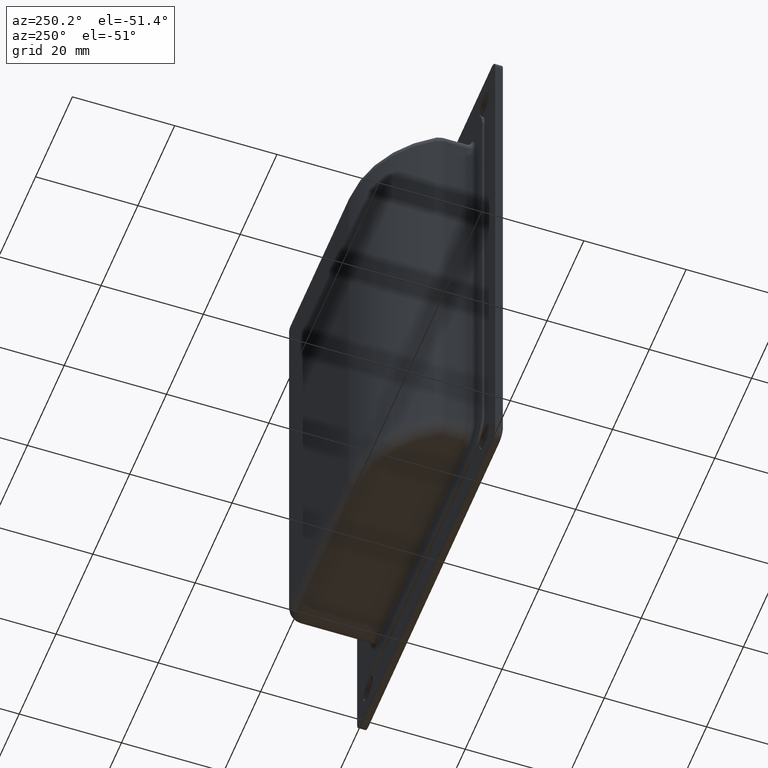
[diagram: clean part render]
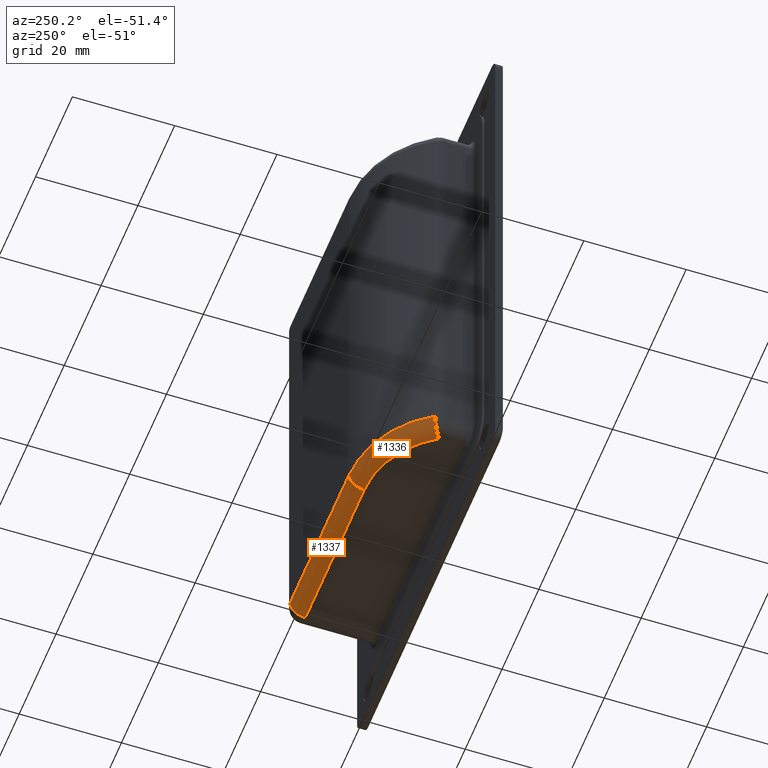
[diagram: same view with one multi-face feature highlighted, each face labeled with its STEP entity id]
A machine part, auxiliary view. The highlighted faces form ONE feature: a constant-radius fillet chain: 2 tangent blend faces with common blend radius 3 mm. The faces share edges in the B-rep.
Their STEP definitions:
[1] entity #1337 (Cylinder):
#124=LINE('',#2246,#220);
#125=LINE('',#2247,#221);
#220=VECTOR('',#1817,32.);
#221=VECTOR('',#1818,32.);
#283=CYLINDRICAL_SURFACE('',#1478,3.);
#341=FACE_OUTER_BOUND('',#427,.T.);
#427=EDGE_LOOP('',(#1092,#1093,#1094,#1095));
#533=CIRCLE('',#1476,3.);
#535=CIRCLE('',#1479,3.);
#643=VERTEX_POINT('',#2237);
#644=VERTEX_POINT('',#2239);
#645=VERTEX_POINT('',#2243);
#646=VERTEX_POINT('',#2244);
#804=EDGE_CURVE('',#643,#644,#533,.T.);
#806=EDGE_CURVE('',#645,#646,#535,.T.);
#807=EDGE_CURVE('',#646,#644,#124,.T.);
#808=EDGE_CURVE('',#643,#645,#125,.T.);
#1092=ORIENTED_EDGE('',*,*,#806,.T.);
#1093=ORIENTED_EDGE('',*,*,#807,.T.);
#1094=ORIENTED_EDGE('',*,*,#804,.F.);
#1095=ORIENTED_EDGE('',*,*,#808,.T.);
#1337=ADVANCED_FACE('',(#341),#283,.T.);
#1476=AXIS2_PLACEMENT_3D('',#2240,#1809,#1810);
#1478=AXIS2_PLACEMENT_3D('',#2242,#1813,#1814);
#1479=AXIS2_PLACEMENT_3D('',#2245,#1815,#1816);
#1809=DIRECTION('center_axis',(-1.,0.,0.));
#1810=DIRECTION('ref_axis',(0.,1.,0.));
#1813=DIRECTION('center_axis',(1.,2.77555756156289E-16,0.));
#1814=DIRECTION('ref_axis',(0.,0.707106781186546,-0.707106781186549));
#1815=DIRECTION('center_axis',(-1.,0.,0.));
#1816=DIRECTION('ref_axis',(0.,1.,0.));
#1817=DIRECTION('',(-1.,-2.77555756156289E-16,0.));
#1818=DIRECTION('',(1.,2.77555756156289E-16,0.));
#2237=CARTESIAN_POINT('',(19.,17.5,-40.5));
#2239=CARTESIAN_POINT('',(19.,14.5,-43.5));
#2240=CARTESIAN_POINT('Origin',(19.,14.5,-40.5));
#2242=CARTESIAN_POINT('Origin',(39.9852925297952,14.5,-40.5));
#2243=CARTESIAN_POINT('',(51.,17.5,-40.5));
#2244=CARTESIAN_POINT('',(51.,14.5,-43.5));
#2245=CARTESIAN_POINT('Origin',(51.,14.5,-40.5));
#2246=CARTESIAN_POINT('',(39.9852925297952,14.5,-43.5));
#2247=CARTESIAN_POINT('',(39.9852925297952,17.5,-40.5));
[2] entity #1336 (Torus):
#340=FACE_OUTER_BOUND('',#426,.T.);
#426=EDGE_LOOP('',(#1088,#1089,#1090,#1091));
#531=CIRCLE('',#1474,3.);
#532=CIRCLE('',#1475,21.9090909090909);
#533=CIRCLE('',#1476,3.);
#534=CIRCLE('',#1477,18.9090909090909);
#641=VERTEX_POINT('',#2231);
#642=VERTEX_POINT('',#2235);
#643=VERTEX_POINT('',#2237);
#644=VERTEX_POINT('',#2239);
#802=EDGE_CURVE('',#641,#642,#531,.T.);
#803=EDGE_CURVE('',#642,#643,#532,.T.);
#804=EDGE_CURVE('',#643,#644,#533,.T.);
#805=EDGE_CURVE('',#644,#641,#534,.T.);
#1088=ORIENTED_EDGE('',*,*,#802,.T.);
#1089=ORIENTED_EDGE('',*,*,#803,.T.);
#1090=ORIENTED_EDGE('',*,*,#804,.T.);
#1091=ORIENTED_EDGE('',*,*,#805,.T.);
#1287=TOROIDAL_SURFACE('',#1473,18.9090909090909,3.);
#1336=ADVANCED_FACE('',(#340),#1287,.T.);
#1473=AXIS2_PLACEMENT_3D('',#2234,#1803,#1804);
#1474=AXIS2_PLACEMENT_3D('',#2236,#1805,#1806);
#1475=AXIS2_PLACEMENT_3D('',#2238,#1807,#1808);
#1476=AXIS2_PLACEMENT_3D('',#2240,#1809,#1810);
#1477=AXIS2_PLACEMENT_3D('',#2241,#1811,#1812);
#1803=DIRECTION('center_axis',(0.,0.,-1.));
#1804=DIRECTION('ref_axis',(-1.,0.,0.));
#1805=DIRECTION('center_axis',(0.532938710021194,0.846153846153845,0.));
#1806=DIRECTION('ref_axis',(0.,0.,-1.));
#1807=DIRECTION('center_axis',(0.,0.,-1.));
#1808=DIRECTION('ref_axis',(-0.483250085348573,0.875482355624942,0.));
#1809=DIRECTION('center_axis',(-1.,0.,0.));
#1810=DIRECTION('ref_axis',(0.,1.,0.));
#1811=DIRECTION('center_axis',(0.,0.,1.));
#1812=DIRECTION('ref_axis',(-0.483250085348573,0.875482355624942,0.));
#2231=CARTESIAN_POINT('',(3.,5.66829560767347,-43.5));
#2234=CARTESIAN_POINT('Origin',(19.,-4.40909090909093,-40.5));
#2235=CARTESIAN_POINT('',(0.461538461538462,7.26711173773705,-40.5));
#2236=CARTESIAN_POINT('Origin',(3.,5.66829560767347,-40.5));
#2237=CARTESIAN_POINT('',(19.,17.5,-40.5));
#2238=CARTESIAN_POINT('Origin',(19.,-4.40909090909093,-40.5));
#2239=CARTESIAN_POINT('',(19.,14.5,-43.5));
#2240=CARTESIAN_POINT('Origin',(19.,14.5,-40.5));
#2241=CARTESIAN_POINT('Origin',(19.,-4.40909090909093,-43.5));